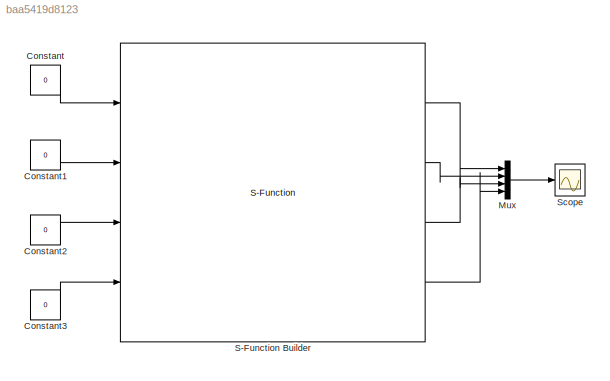
MODEL slx_baa5419d8123
KIND model
BLOCK [Constant] Constant
  Value = 0
BLOCK [Constant] Constant1
  Value = 0
BLOCK [Constant] Constant2
  Value = 0
BLOCK [Constant] Constant3
  Value = 0
BLOCK [Mux] Mux
  DisplayOption = bar
  Ports = [4, 1]
BLOCK [S-Function] S-Function Builder
  CopyFcn = set_param(gcbh,'LinkStatus','none')
  EnableBusSupport = off
  FunctionName = BBB_Output_LightTest
  InitFcn = try, set_param(gcb,'FunctionName','BBB_Output_LightTest'), end
  OpenFcn = sfunctionwizard(gcbh)
  Parameters = boolean(0),boolean(1)
  Ports = [4, 4]
  PreSaveFcn = try, set_param(gcb,'FunctionName','BBB_Output_LightTest'), end
  SFunctionModules = BBB_Output_LightTest_wrapper
BLOCK [Scope] Scope
  DataFormat = StructureWithTime
  Floating = off
  NumInputPorts = 1
  Ports = [1]
  SampleTime = 0
  ShowLegends = off
LINE Constant1:1 -> S-Function Builder:2
LINE Constant2:1 -> S-Function Builder:3
LINE Constant3:1 -> S-Function Builder:4
LINE Constant:1 -> S-Function Builder:1
LINE Mux:1 -> Scope:1
LINE S-Function Builder:1 -> Mux:1
LINE S-Function Builder:2 -> Mux:2
LINE S-Function Builder:3 -> Mux:3
LINE S-Function Builder:4 -> Mux:4
